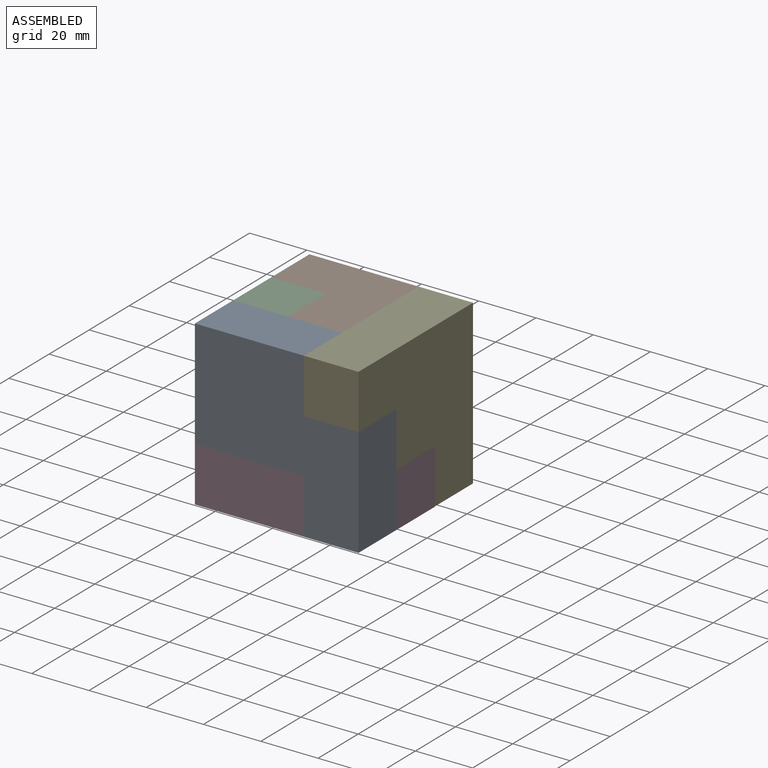
[diagram: assembled view]
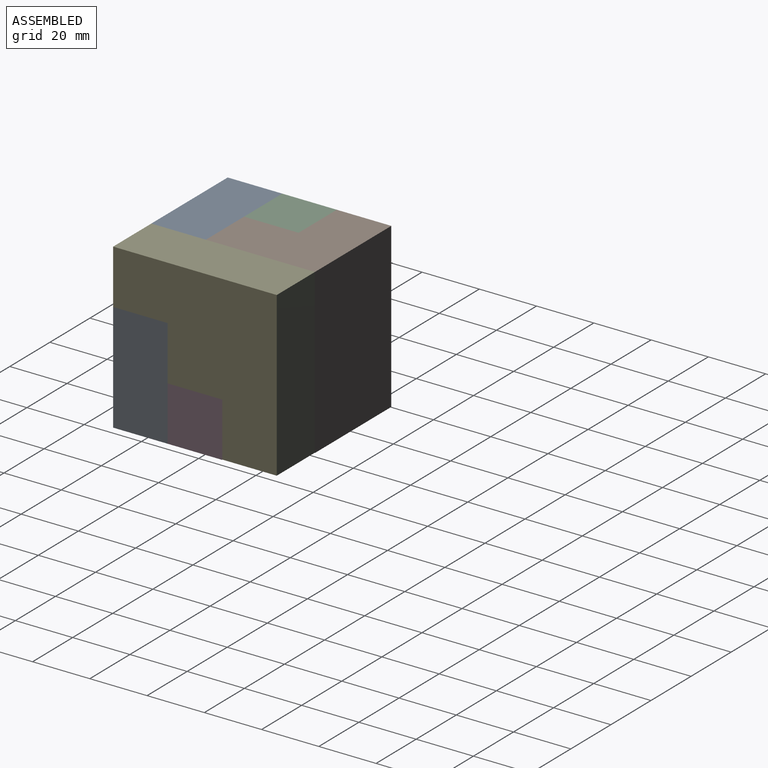
[diagram: assembled view, second angle]
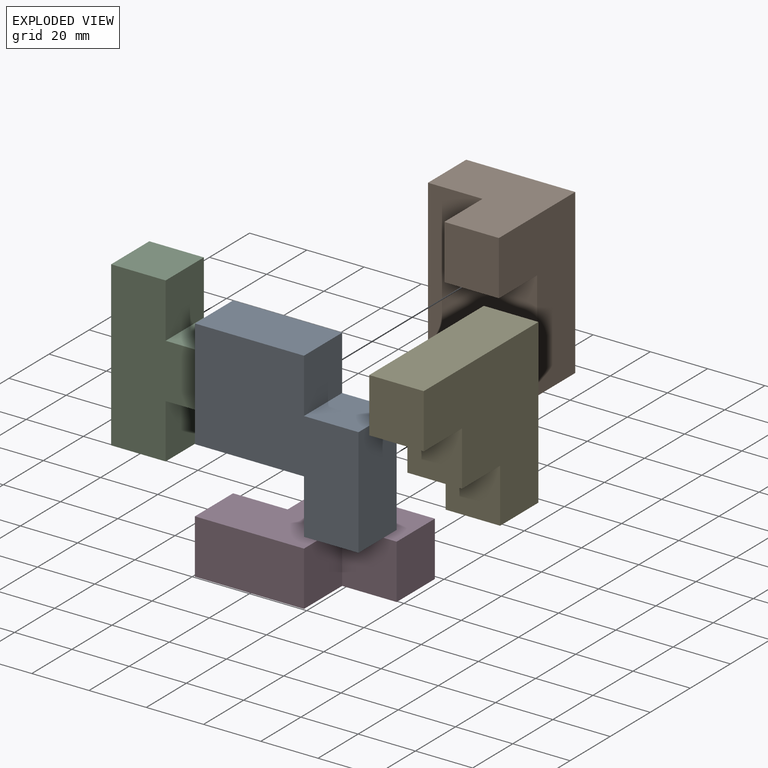
[diagram: exploded view]
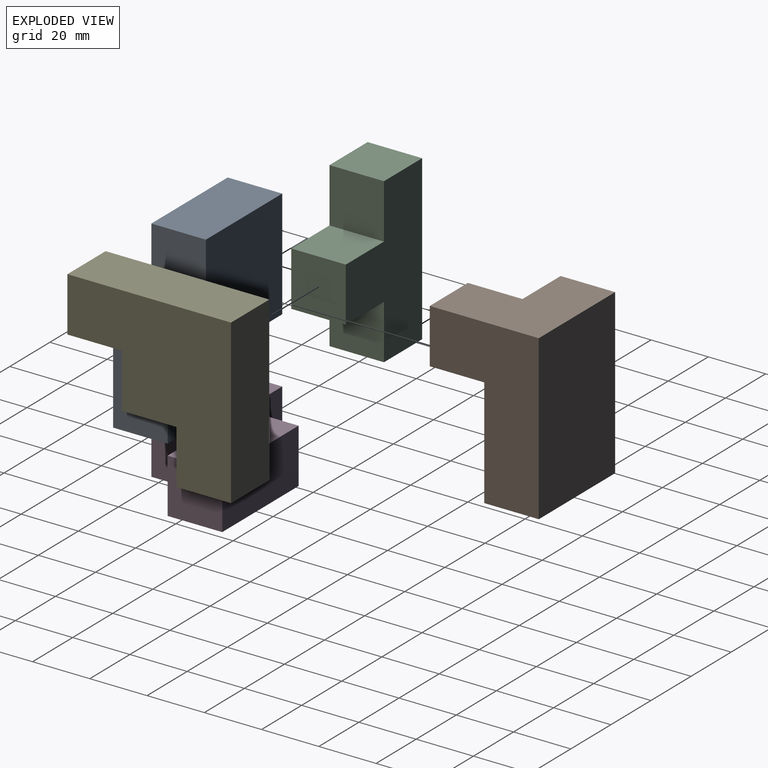
[diagram: exploded view, second angle]
ASSEMBLY  parts=5 mates=4
PART A: 10 faces, bbox 57.2x19.1x57.2 mm
  f0: plane 19.05x19.05mm, normal (0,0,-1), area 362.9mm2, adj f1,f7,f8,f9
  f1: plane 38.1x19.05mm, normal (1,0,0), area 725.8mm2, adj f0,f2,f8,f9
  f2: plane 19.05x19.05mm, normal (0,0,1), area 362.9mm2, adj f1,f3,f8,f9
  f3: plane 19.05x19.05mm, normal (1,0,0), area 362.9mm2, adj f2,f4,f8,f9
  f4: plane 38.1x19.05mm, normal (0,0,1), area 725.8mm2, adj f3,f5,f8,f9
  f5: plane 38.1x19.05mm, normal (-1,0,0), area 725.8mm2, adj f4,f6,f8,f9
  f6: plane 38.1x19.05mm, normal (0,0,-1), area 725.8mm2, adj f5,f7,f8,f9
  f7: plane 19.05x19.05mm, normal (-1,0,0), area 362.9mm2, adj f0,f6,f8,f9
  f8: plane 57.15x57.15mm, normal (0,-1,0), area 2177.4mm2, adj f0,f1,f2,f3,f4,f5,f6,f7
  f9: plane 57.15x57.15mm, normal (0,1,0), area 2177.4mm2, adj f0,f1,f2,f3,f4,f5,f6,f7
PART B: 9 faces, bbox 38.1x38.1x57.2 mm
  f0: plane 57.15x38.1mm, normal (0,-1,0), area 1814.5mm2, adj f1,f2,f3,f4,f6,f7
  f1: plane 38.1x19.05mm, normal (0,0,-1), area 725.8mm2, adj f0,f2,f4,f5
  f2: plane 57.15x38.1mm, normal (1,0,0), area 1451.6mm2, adj f0,f1,f3,f5,f7,f8
  f3: plane 38.1x38.1mm, normal (0,0,1), area 1088.7mm2, adj f0,f2,f4,f5,f6,f8
  f4: plane 57.15x19.05mm, normal (-1,0,0), area 1088.7mm2, adj f0,f1,f3,f5
  f5: plane 57.15x38.1mm, normal (0,1,0), area 2177.4mm2, adj f1,f2,f3,f4
  f6: plane 19.05x19.05mm, normal (-1,0,0), area 362.9mm2, adj f0,f3,f7,f8
  f7: plane 19.05x19.05mm, normal (0,0,-1), area 362.9mm2, adj f0,f2,f6,f8
  f8: plane 19.05x19.05mm, normal (0,-1,0), area 362.9mm2, adj f2,f3,f6,f7
PART C: 10 faces, bbox 38.1x19.1x57.2 mm
  f0: plane 19.05x19.05mm, normal (0,0,1), area 362.9mm2, adj f1,f7,f8,f9
  f1: plane 19.05x19.05mm, normal (1,0,0), area 362.9mm2, adj f0,f2,f8,f9
  f2: plane 19.05x19.05mm, normal (0,0,1), area 362.9mm2, adj f1,f3,f8,f9
  f3: plane 57.15x19.05mm, normal (-1,0,0), area 1088.7mm2, adj f2,f4,f8,f9
  f4: plane 19.05x19.05mm, normal (0,0,-1), area 362.9mm2, adj f3,f5,f8,f9
  f5: plane 19.05x19.05mm, normal (1,0,0), area 362.9mm2, adj f4,f6,f8,f9
  f6: plane 19.05x19.05mm, normal (0,0,-1), area 362.9mm2, adj f5,f7,f8,f9
  f7: plane 19.05x19.05mm, normal (1,0,0), area 362.9mm2, adj f0,f6,f8,f9
  f8: plane 57.15x38.1mm, normal (0,-1,0), area 1451.6mm2, adj f0,f1,f2,f3,f4,f5,f6,f7
  f9: plane 57.15x38.1mm, normal (0,1,0), area 1451.6mm2, adj f0,f1,f2,f3,f4,f5,f6,f7
PART D: 10 faces, bbox 38.1x19.1x57.2 mm
  f0: plane 19.05x19.05mm, normal (0,0,1), area 362.9mm2, adj f1,f7,f8,f9
  f1: plane 38.1x19.05mm, normal (-1,0,0), area 725.8mm2, adj f0,f2,f8,f9
  f2: plane 19.05x19.05mm, normal (0,0,-1), area 362.9mm2, adj f1,f3,f8,f9
  f3: plane 19.05x19.05mm, normal (-1,0,0), area 362.9mm2, adj f2,f4,f8,f9
  f4: plane 19.05x19.05mm, normal (0,0,-1), area 362.9mm2, adj f3,f5,f8,f9
  f5: plane 38.1x19.05mm, normal (1,0,0), area 725.8mm2, adj f4,f6,f8,f9
  f6: plane 19.05x19.05mm, normal (0,0,1), area 362.9mm2, adj f5,f7,f8,f9
  f7: plane 19.05x19.05mm, normal (1,0,0), area 362.9mm2, adj f0,f6,f8,f9
  f8: plane 57.15x38.1mm, normal (0,-1,0), area 1451.6mm2, adj f0,f1,f2,f3,f4,f5,f6,f7
  f9: plane 57.15x38.1mm, normal (0,1,0), area 1451.6mm2, adj f0,f1,f2,f3,f4,f5,f6,f7
PART E: 10 faces, bbox 57.2x19.1x57 mm
  f0: plane 57.15x19.05mm, normal (0,0,1), area 1088.7mm2, adj f1,f7,f8,f9
  f1: plane 57.04x19.05mm, normal (-1,0,0), area 1086.7mm2, adj f0,f2,f8,f9
  f2: plane 19.05x19.05mm, normal (0,0,-1), area 362.9mm2, adj f1,f3,f8,f9
  f3: plane 19.05x18.94mm, normal (1,0,0), area 360.9mm2, adj f2,f4,f8,f9
  f4: plane 19.05x19.05mm, normal (0,0,-1), area 362.9mm2, adj f3,f5,f8,f9
  f5: plane 19.05x19.05mm, normal (1,0,0), area 362.9mm2, adj f4,f6,f8,f9
  f6: plane 19.05x19.05mm, normal (0,0,-1), area 362.9mm2, adj f5,f7,f8,f9
  f7: plane 19.05x19.05mm, normal (1,0,0), area 362.9mm2, adj f0,f6,f8,f9
  f8: plane 57.15x57.04mm, normal (0,-1,0), area 2175.4mm2, adj f0,f1,f2,f3,f4,f5,f6,f7
  f9: plane 57.15x57.04mm, normal (0,1,0), area 2175.4mm2, adj f0,f1,f2,f3,f4,f5,f6,f7
PLACE A t=(-28.67,-52.61,-47.17)mm
PLACE B t=(-48.02,-14.51,-66.52)mm
PLACE C t=(-48.02,-33.56,-47.47)mm
PLACE D rot(axis=(-0.58,-0.58,0.58),120deg) t=(-28.97,-52.61,-66.52)mm
PLACE E rot(axis=(0,0,-1),90deg) t=(-9.92,-33.56,-47.47)mm
MATE fastened C.f5 <-> D.f6  axis (1,0,0) through (-38.49,-33.56,-66.52)mm
MATE fastened B.f0 <-> C.f9  axis (0,-1,0) through (-57.54,-24.03,-18.89)mm
MATE fastened A.f6 <-> D.f8  axis (0,0,-1) through (-57.54,-62.13,-56.99)mm
MATE fastened E.f8 <-> A.f3  axis (-1,0,0) through (-19.44,-62.13,-18.89)mm
